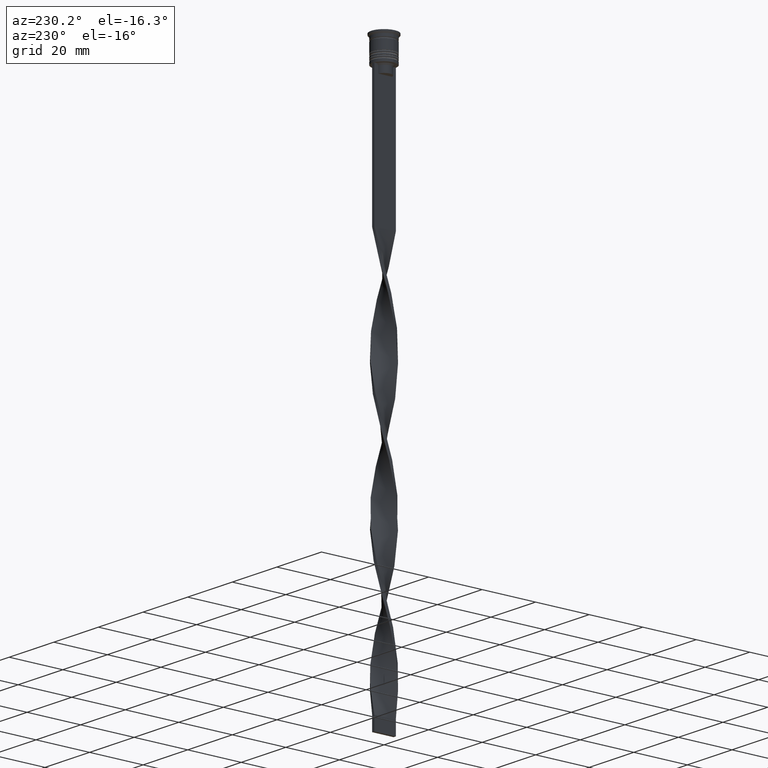
[diagram: clean part render]
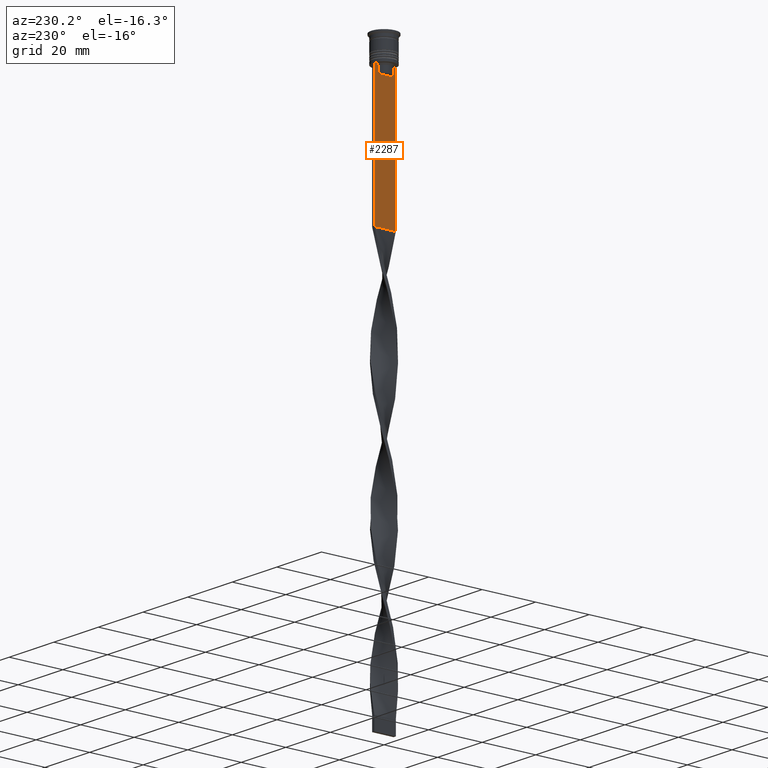
[diagram: same view with one face highlighted and labeled with its STEP entity id]
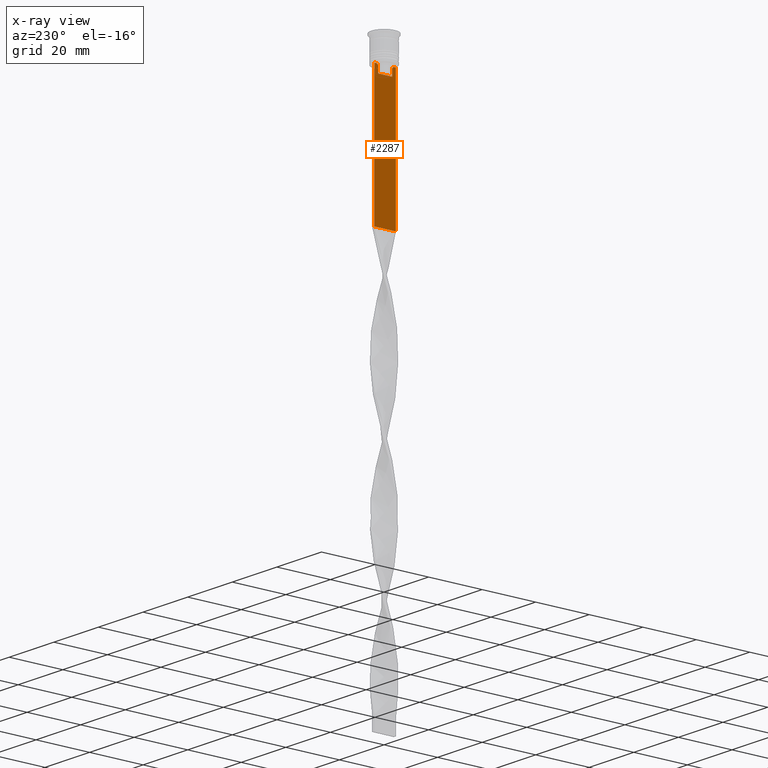
[diagram: x-ray of the same camera — body ghosted, the highlighted face saturated]
A machine part, auxiliary view. The second image highlights one B-rep face of the part: STEP entity #2287.
The next image is the same camera in x-ray: the body ghosted, the highlighted face saturated — about 0% of this face is hidden behind the body in this view.
In plain terms, the highlighted planar face has unit normal (-1, 0, 0).
Its self-contained STEP definition (entity closure, byte-faithful):
#6 = B_SPLINE_CURVE_WITH_KNOTS ( 'NONE', 3,
 ( #1458, #3527, #3000, #1203 ),
 .UNSPECIFIED., .F., .F.,
 ( 4, 4 ),
 ( 0.005378271293598281544, 0.006090816219556000749 ),
 .UNSPECIFIED. ) ;
#211 = VERTEX_POINT ( 'NONE', #2811 ) ;
#293 = VECTOR ( 'NONE', #2416, 1000.000000000000000 ) ;
#377 = VERTEX_POINT ( 'NONE', #3432 ) ;
#392 = DIRECTION ( 'NONE',  ( 0.000000000000000000, 0.000000000000000000, 1.000000000000000000 ) ) ;
#412 = AXIS2_PLACEMENT_3D ( 'NONE', #1867, #2161, #392 ) ;
#486 = EDGE_CURVE ( 'NONE', #3319, #3688, #3806, .T. ) ;
#540 = CARTESIAN_POINT ( 'NONE',  ( -0.5000000000000000000, -4.000000000000000000, -58.50000000000000000 ) ) ;
#546 = EDGE_LOOP ( 'NONE', ( #3285, #868, #2622, #2443, #3618, #2192, #3062, #1933, #1842, #1954 ) ) ;
#552 = CARTESIAN_POINT ( 'NONE',  ( -0.5000000000000000000, -2.941045828809988549, -9.666875663357577864 ) ) ;
#553 = CARTESIAN_POINT ( 'NONE',  ( -0.5000000000000000000, -2.602402735934616906, -10.00000000000000178 ) ) ;
#610 = EDGE_CURVE ( 'NONE', #1679, #2669, #2371, .T. ) ;
#687 = PLANE ( 'NONE',  #412 ) ;
#735 = VECTOR ( 'NONE', #1185, 1000.000000000000000 ) ;
#751 = LINE ( 'NONE', #1364, #3530 ) ;
#868 = ORIENTED_EDGE ( 'NONE', *, *, #3601, .F. ) ;
#1070 = EDGE_CURVE ( 'NONE', #3115, #2230, #3272, .T. ) ;
#1103 = DIRECTION ( 'NONE',  ( 0.000000000000000000, -1.000000000000000000, 0.000000000000000000 ) ) ;
#1117 = EDGE_CURVE ( 'NONE', #2230, #1679, #1904, .T. ) ;
#1184 = CARTESIAN_POINT ( 'NONE',  ( -0.5000000000000000000, -2.602402735934616906, 0.000000000000000000 ) ) ;
#1185 = DIRECTION ( 'NONE',  ( 0.000000000000000000, 0.000000000000000000, -1.000000000000000000 ) ) ;
#1193 = DIRECTION ( 'NONE',  ( 0.000000000000000000, 0.000000000000000000, -1.000000000000000000 ) ) ;
#1202 = CARTESIAN_POINT ( 'NONE',  ( -0.5000000000000000000, -2.602402735934616906, -10.00000000000000178 ) ) ;
#1203 = CARTESIAN_POINT ( 'NONE',  ( -0.5000000000000000000, 2.602402735934616906, -10.00000000000000178 ) ) ;
#1292 = LINE ( 'NONE', #2168, #2468 ) ;
#1303 = FACE_OUTER_BOUND ( 'NONE', #546, .T. ) ;
#1364 = CARTESIAN_POINT ( 'NONE',  ( -0.5000000000000000000, 2.649999999999995914, -12.50000000000000000 ) ) ;
#1458 = CARTESIAN_POINT ( 'NONE',  ( -0.5000000000000000000, 3.110064308016796897, -9.500000000000000000 ) ) ;
#1471 = DIRECTION ( 'NONE',  ( 0.000000000000000000, 1.000000000000000000, 0.000000000000000000 ) ) ;
#1556 = CARTESIAN_POINT ( 'NONE',  ( -0.5000000000000000000, -4.000000000000000000, -9.500000000000000000 ) ) ;
#1675 = LINE ( 'NONE', #3159, #2832 ) ;
#1679 = VERTEX_POINT ( 'NONE', #3305 ) ;
#1781 = LINE ( 'NONE', #3850, #2339 ) ;
#1842 = ORIENTED_EDGE ( 'NONE', *, *, #2021, .F. ) ;
#1867 = CARTESIAN_POINT ( 'NONE',  ( -0.5000000000000000000, -4.000000000000000000, -1.437742251701450202 ) ) ;
#1904 = B_SPLINE_CURVE_WITH_KNOTS ( 'NONE', 3,
 ( #1202, #2392, #552, #3526 ),
 .UNSPECIFIED., .F., .F.,
 ( 4, 4 ),
 ( 0.01295151922336848505, 0.01367164596165163643 ),
 .UNSPECIFIED. ) ;
#1933 = ORIENTED_EDGE ( 'NONE', *, *, #1070, .F. ) ;
#1954 = ORIENTED_EDGE ( 'NONE', *, *, #3335, .F. ) ;
#2021 = EDGE_CURVE ( 'NONE', #3715, #3115, #751, .T. ) ;
#2110 = EDGE_CURVE ( 'NONE', #377, #3688, #3274, .T. ) ;
#2161 = DIRECTION ( 'NONE',  ( -1.000000000000000000, 0.000000000000000000, 0.000000000000000000 ) ) ;
#2167 = EDGE_CURVE ( 'NONE', #211, #2496, #6, .T. ) ;
#2168 = CARTESIAN_POINT ( 'NONE',  ( -0.5000000000000000000, -4.000000000000000000, -9.500000000000000000 ) ) ;
#2185 = CARTESIAN_POINT ( 'NONE',  ( -0.5000000000000000000, 2.602402735934616906, -12.50000000000000000 ) ) ;
#2192 = ORIENTED_EDGE ( 'NONE', *, *, #610, .F. ) ;
#2202 = DIRECTION ( 'NONE',  ( 0.000000000000000000, -1.000000000000000000, 0.000000000000000000 ) ) ;
#2230 = VERTEX_POINT ( 'NONE', #553 ) ;
#2282 = DIRECTION ( 'NONE',  ( 0.000000000000000000, 0.000000000000000000, -1.000000000000000000 ) ) ;
#2287 = ADVANCED_FACE ( 'NONE', ( #1303 ), #687, .T. ) ;
#2339 = VECTOR ( 'NONE', #1193, 1000.000000000000000 ) ;
#2358 = CARTESIAN_POINT ( 'NONE',  ( -0.5000000000000000000, 4.000000000000000000, -1.437742251701450202 ) ) ;
#2371 = LINE ( 'NONE', #2571, #3027 ) ;
#2392 = CARTESIAN_POINT ( 'NONE',  ( -0.5000000000000000000, -2.771864055700302476, -9.833582414266677674 ) ) ;
#2416 = DIRECTION ( 'NONE',  ( -0.000000000000000000, -0.000000000000000000, 1.000000000000000000 ) ) ;
#2443 = ORIENTED_EDGE ( 'NONE', *, *, #486, .F. ) ;
#2468 = VECTOR ( 'NONE', #2202, 1000.000000000000000 ) ;
#2496 = VERTEX_POINT ( 'NONE', #2964 ) ;
#2546 = DIRECTION ( 'NONE',  ( 0.000000000000000000, -1.000000000000000000, 0.000000000000000000 ) ) ;
#2571 = CARTESIAN_POINT ( 'NONE',  ( -0.5000000000000000000, -4.000000000000000000, -9.500000000000000000 ) ) ;
#2622 = ORIENTED_EDGE ( 'NONE', *, *, #2110, .T. ) ;
#2669 = VERTEX_POINT ( 'NONE', #1556 ) ;
#2811 = CARTESIAN_POINT ( 'NONE',  ( -0.5000000000000000000, 3.110064308016796897, -9.500000000000000000 ) ) ;
#2832 = VECTOR ( 'NONE', #2282, 1000.000000000000000 ) ;
#2869 = CARTESIAN_POINT ( 'NONE',  ( -0.5000000000000000000, -4.000000000000000000, -58.50000000000000000 ) ) ;
#2964 = CARTESIAN_POINT ( 'NONE',  ( -0.5000000000000000000, 2.602402735934616906, -10.00000000000000178 ) ) ;
#3000 = CARTESIAN_POINT ( 'NONE',  ( -0.5000000000000000000, 2.771866350855961336, -9.833580160334840059 ) ) ;
#3027 = VECTOR ( 'NONE', #1103, 1000.000000000000000 ) ;
#3062 = ORIENTED_EDGE ( 'NONE', *, *, #1117, .F. ) ;
#3115 = VERTEX_POINT ( 'NONE', #3803 ) ;
#3159 = CARTESIAN_POINT ( 'NONE',  ( -0.5000000000000000000, -4.000000000000000000, -1.437742251701450202 ) ) ;
#3166 = EDGE_CURVE ( 'NONE', #2669, #3319, #1675, .T. ) ;
#3272 = LINE ( 'NONE', #1184, #293 ) ;
#3274 = LINE ( 'NONE', #2358, #735 ) ;
#3285 = ORIENTED_EDGE ( 'NONE', *, *, #2167, .F. ) ;
#3305 = CARTESIAN_POINT ( 'NONE',  ( -0.5000000000000000000, -3.110064308016796897, -9.500000000000000000 ) ) ;
#3319 = VERTEX_POINT ( 'NONE', #540 ) ;
#3335 = EDGE_CURVE ( 'NONE', #2496, #3715, #1781, .T. ) ;
#3432 = CARTESIAN_POINT ( 'NONE',  ( -0.5000000000000000000, 4.000000000000000000, -9.500000000000000000 ) ) ;
#3514 = VECTOR ( 'NONE', #1471, 1000.000000000000000 ) ;
#3526 = CARTESIAN_POINT ( 'NONE',  ( -0.5000000000000000000, -3.110064308016796897, -9.500000000000000000 ) ) ;
#3527 = CARTESIAN_POINT ( 'NONE',  ( -0.5000000000000000000, 2.941047749529104749, -9.666873766989334982 ) ) ;
#3530 = VECTOR ( 'NONE', #2546, 1000.000000000000000 ) ;
#3601 = EDGE_CURVE ( 'NONE', #377, #211, #1292, .T. ) ;
#3618 = ORIENTED_EDGE ( 'NONE', *, *, #3166, .F. ) ;
#3665 = CARTESIAN_POINT ( 'NONE',  ( -0.5000000000000000000, 4.000000000000000000, -58.50000000000000000 ) ) ;
#3688 = VERTEX_POINT ( 'NONE', #3665 ) ;
#3715 = VERTEX_POINT ( 'NONE', #2185 ) ;
#3803 = CARTESIAN_POINT ( 'NONE',  ( -0.5000000000000000000, -2.602402735934616906, -12.50000000000000000 ) ) ;
#3806 = LINE ( 'NONE', #2869, #3514 ) ;
#3850 = CARTESIAN_POINT ( 'NONE',  ( -0.5000000000000000000, 2.602402735934616906, 0.000000000000000000 ) ) ;